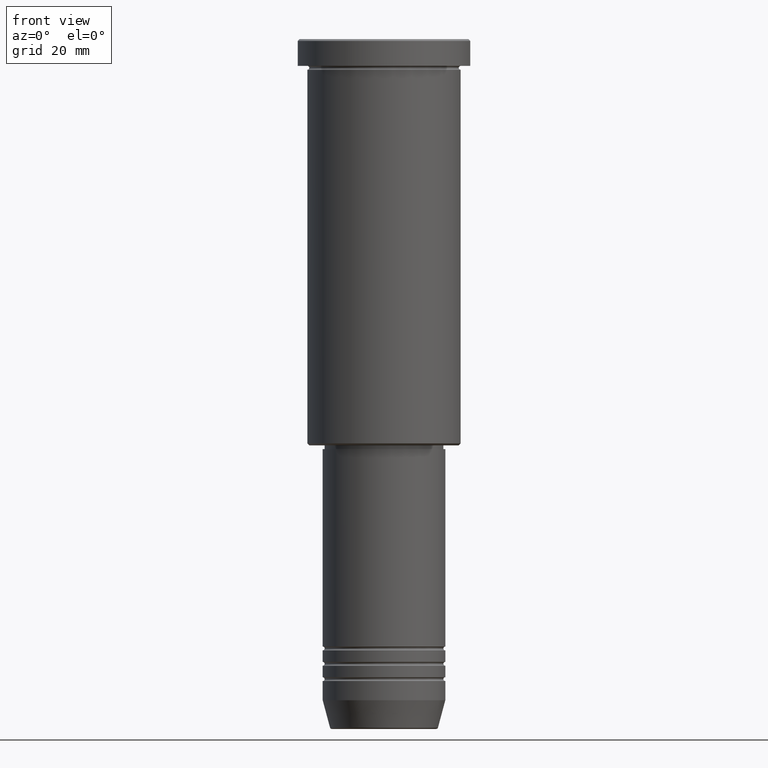
[diagram: clean part render]
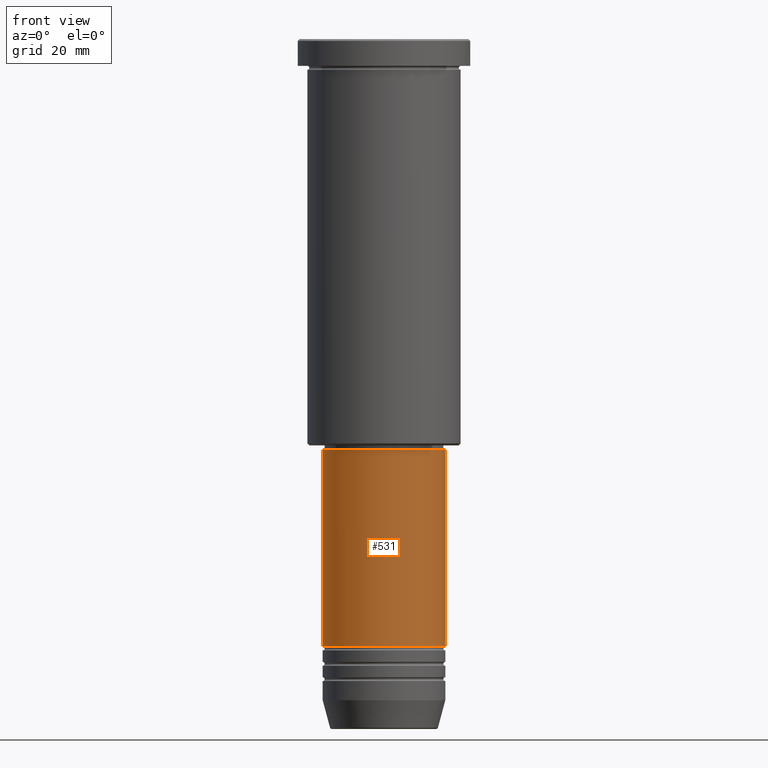
[diagram: same view with one face highlighted and labeled with its STEP entity id]
A machine part, front view. The second image highlights one B-rep face of the part: STEP entity #531.
In plain terms, the highlighted cylindrical surface (partial cylindrical patch) has radius 16 mm, axis along (-0, -0, 1).
Its self-contained STEP definition (entity closure, byte-faithful):
#5 = AXIS2_PLACEMENT_3D ( 'NONE', #222, #115, #1009 ) ;
#34 = VECTOR ( 'NONE', #597, 1000.000000000000000 ) ;
#52 = DIRECTION ( 'NONE',  ( -0.000000000000000000, -0.000000000000000000, 1.000000000000000000 ) ) ;
#108 = CARTESIAN_POINT ( 'NONE',  ( 0.000000000000000000, 0.000000000000000000, 0.000000000000000000 ) ) ;
#112 = VERTEX_POINT ( 'NONE', #270 ) ;
#113 = DIRECTION ( 'NONE',  ( 1.000000000000000000, 0.000000000000000000, 0.000000000000000000 ) ) ;
#115 = DIRECTION ( 'NONE',  ( -0.000000000000000000, -0.000000000000000000, 1.000000000000000000 ) ) ;
#117 = CARTESIAN_POINT ( 'NONE',  ( -16.00000000000000000, 1.959434878635765131E-15, 0.000000000000000000 ) ) ;
#120 = VECTOR ( 'NONE', #610, 1000.000000000000000 ) ;
#219 = ORIENTED_EDGE ( 'NONE', *, *, #471, .T. ) ;
#222 = CARTESIAN_POINT ( 'NONE',  ( 0.000000000000000000, 0.000000000000000000, -158.5000000000000000 ) ) ;
#270 = CARTESIAN_POINT ( 'NONE',  ( -16.00000000000000000, 1.959434878635765131E-15, -158.5000000000000000 ) ) ;
#297 = CIRCLE ( 'NONE', #793, 16.00000000000000000 ) ;
#321 = VERTEX_POINT ( 'NONE', #919 ) ;
#331 = CARTESIAN_POINT ( 'NONE',  ( 16.00000000000000000, 0.000000000000000000, 0.000000000000000000 ) ) ;
#332 = CARTESIAN_POINT ( 'NONE',  ( -16.00000000000000000, 1.959434878635765131E-15, -107.0000000000000142 ) ) ;
#417 = DIRECTION ( 'NONE',  ( 1.000000000000000000, 0.000000000000000000, 0.000000000000000000 ) ) ;
#425 = ORIENTED_EDGE ( 'NONE', *, *, #1143, .F. ) ;
#438 = LINE ( 'NONE', #331, #120 ) ;
#471 = EDGE_CURVE ( 'NONE', #963, #321, #438, .T. ) ;
#531 = ADVANCED_FACE ( 'NONE', ( #735 ), #1091, .T. ) ;
#594 = VERTEX_POINT ( 'NONE', #332 ) ;
#597 = DIRECTION ( 'NONE',  ( -0.000000000000000000, -0.000000000000000000, 1.000000000000000000 ) ) ;
#610 = DIRECTION ( 'NONE',  ( -0.000000000000000000, -0.000000000000000000, 1.000000000000000000 ) ) ;
#675 = EDGE_CURVE ( 'NONE', #112, #963, #736, .T. ) ;
#735 = FACE_OUTER_BOUND ( 'NONE', #756, .T. ) ;
#736 = CIRCLE ( 'NONE', #5, 16.00000000000000000 ) ;
#738 = EDGE_CURVE ( 'NONE', #594, #321, #297, .T. ) ;
#756 = EDGE_LOOP ( 'NONE', ( #425, #1108, #219, #985 ) ) ;
#772 = CARTESIAN_POINT ( 'NONE',  ( 0.000000000000000000, 0.000000000000000000, -107.0000000000000142 ) ) ;
#793 = AXIS2_PLACEMENT_3D ( 'NONE', #772, #52, #417 ) ;
#919 = CARTESIAN_POINT ( 'NONE',  ( 16.00000000000000000, 0.000000000000000000, -107.0000000000000142 ) ) ;
#963 = VERTEX_POINT ( 'NONE', #1161 ) ;
#985 = ORIENTED_EDGE ( 'NONE', *, *, #738, .F. ) ;
#1009 = DIRECTION ( 'NONE',  ( 1.000000000000000000, 0.000000000000000000, 0.000000000000000000 ) ) ;
#1027 = DIRECTION ( 'NONE',  ( -0.000000000000000000, -0.000000000000000000, 1.000000000000000000 ) ) ;
#1031 = LINE ( 'NONE', #117, #34 ) ;
#1089 = AXIS2_PLACEMENT_3D ( 'NONE', #108, #1027, #113 ) ;
#1091 = CYLINDRICAL_SURFACE ( 'NONE', #1089, 16.00000000000000000 ) ;
#1108 = ORIENTED_EDGE ( 'NONE', *, *, #675, .T. ) ;
#1143 = EDGE_CURVE ( 'NONE', #112, #594, #1031, .T. ) ;
#1161 = CARTESIAN_POINT ( 'NONE',  ( 16.00000000000000000, 0.000000000000000000, -158.5000000000000000 ) ) ;